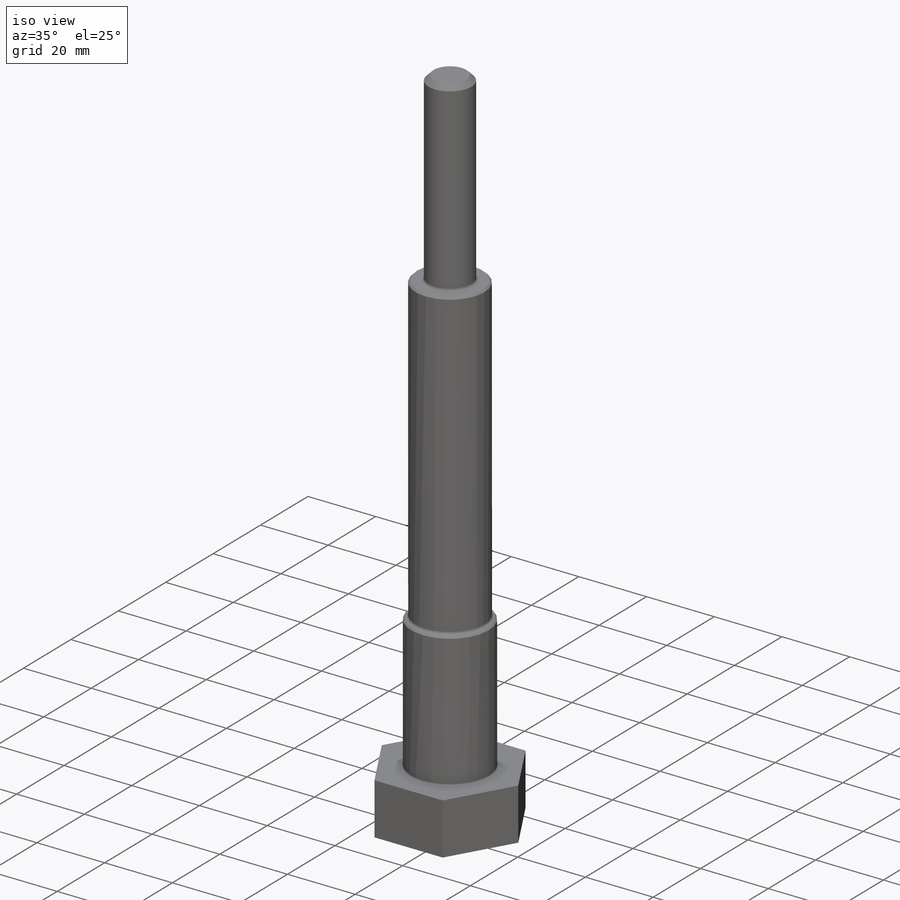
[diagram: iso view]
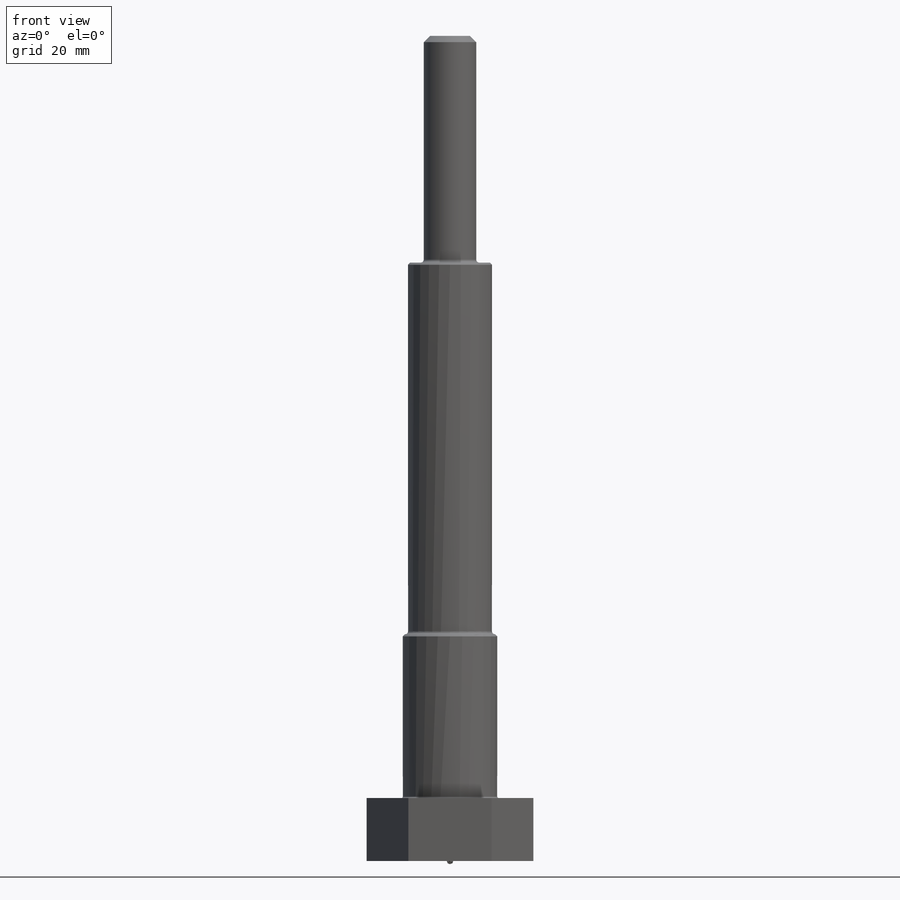
[diagram: front view]
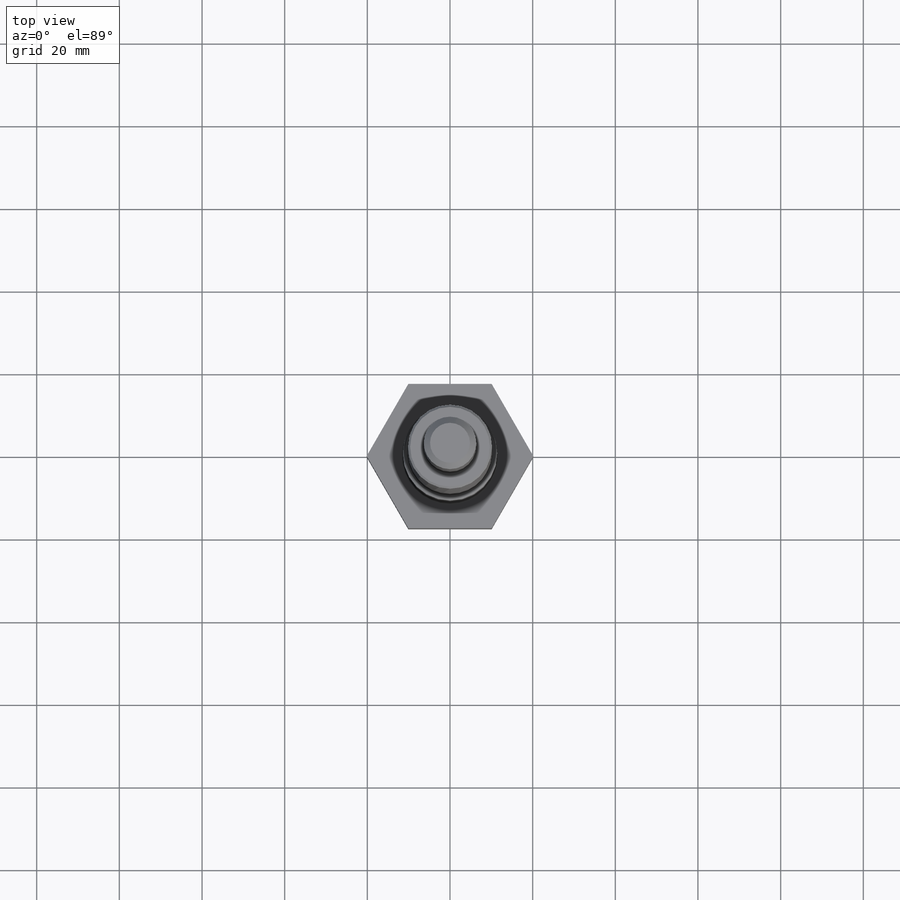
[diagram: top view]
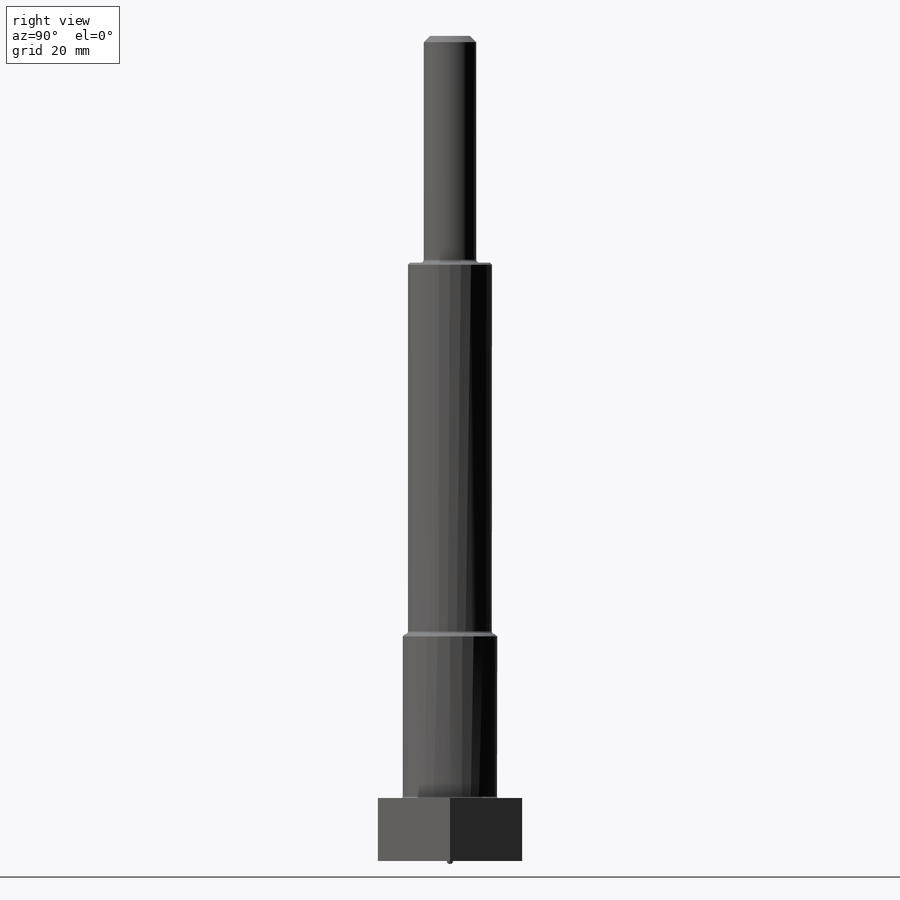
[diagram: right view]
SOLIDWORKS PART (.sldprt)
format: sldprt  version: not decoded by parser v0  size: 232,960 bytes
history: native  units: mm
features: sketch x4, extrude x4, chamfer x2, fillet x2, material x1, thread x1 (+16 scaffold rows collapsed)
feature tree (30):
  scaffold x16  (default folders/planes/origin — collapsed)
  material  "410  SST"
  sketch  "Sketch1"  dims[c1.D1=33.02mm c1.D2=~76.105858mm c1.D3=33.02mm c2.D1=34.925mm]
  extrude  "Extrude1"  Depth=15.24mm
  sketch  "Sketch3"  dims[D1=22.86mm]
  extrude  "Extrude4"  Depth=39.624mm
  sketch  "Sketch7"  dims[D1=20.32mm]
  extrude  "Extrude8"  Depth=89.916mm
  sketch  "Sketch8"  dims[D1=12.7mm]
  extrude  "Extrude9"  [1 undecoded]
  thread  "Cosmetic Thread1"  Diameter=50.8mm  [1 undecoded]
  chamfer  "Chamfer1"  Distance=1.524mm Angle=45deg
  fillet  "Fillet1"  Radius=0.381mm
  fillet  "Fillet2"  Radius=0.762mm
  chamfer  "Chamfer2"  Distance=0.508mm Angle=45deg
decode coverage: 12 of 13 modeling features carry decoded parameters
note: ~ marks probable driven/reference dimensions
note: 2 parameter values undecoded
note: suppression state not decoded; provenance and decode notes live in map.json
